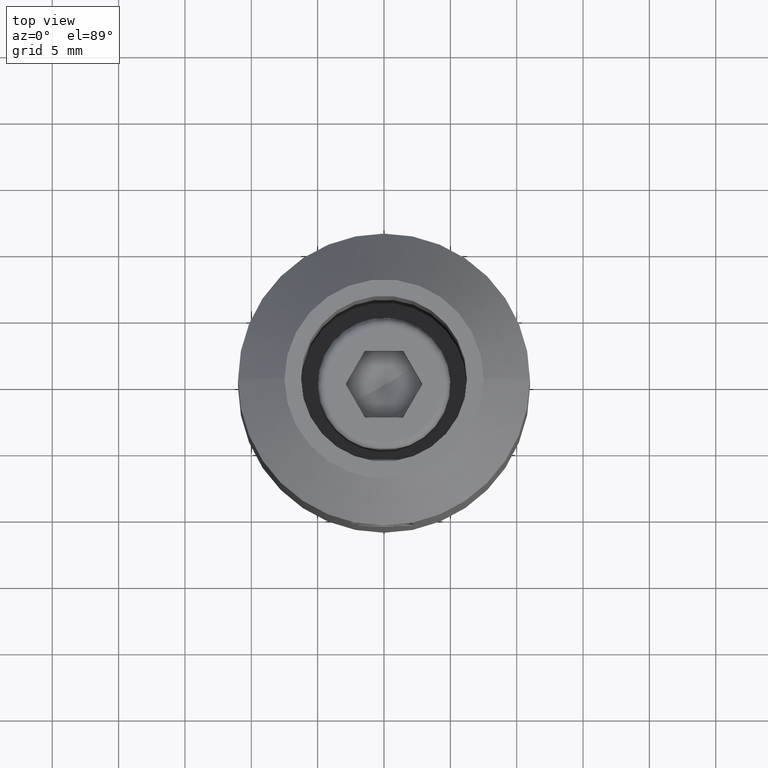
[diagram: clean part render]
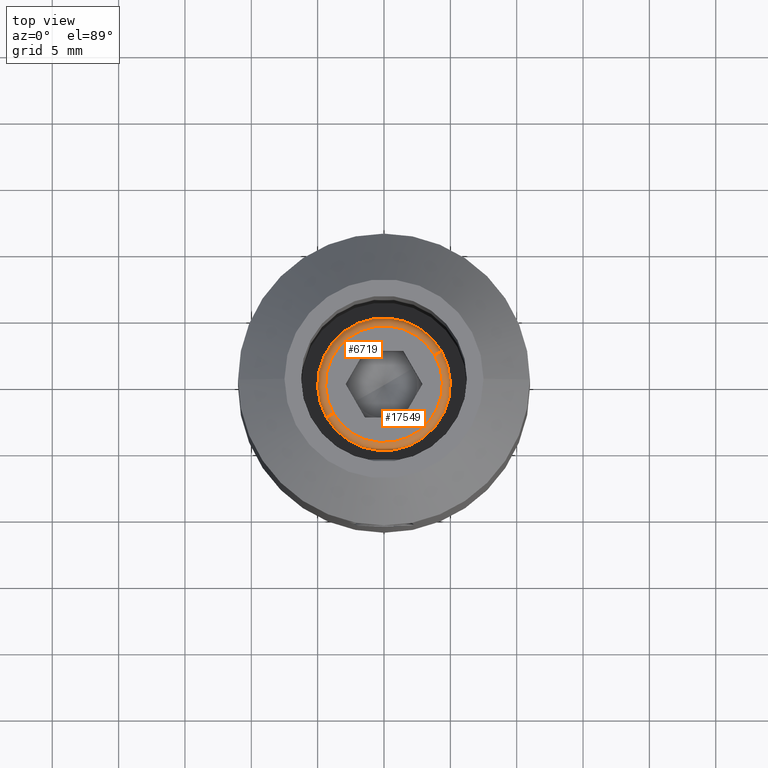
[diagram: same view with one multi-face feature highlighted, each face labeled with its STEP entity id]
A machine part, top view. The highlighted faces form ONE feature: a constant-radius fillet chain: 2 tangent blend faces with common blend radius 0.6 mm. The faces share edges in the B-rep.
Their STEP definitions:
[1] entity #6719 (Torus):
#1574 = CARTESIAN_POINT ( 'NONE',  ( 0.000000000000000000, 1.048987560550177941E-14, -4.400000000000000355 ) ) ;
#2166 = CIRCLE ( 'NONE', #18105, 0.5999999999999998668 ) ;
#2587 = EDGE_CURVE ( 'NONE', #10283, #12870, #2166, .T. ) ;
#2651 = CIRCLE ( 'NONE', #12194, 0.5999999999999998668 ) ;
#2813 = EDGE_CURVE ( 'NONE', #10283, #6060, #15401, .T. ) ;
#4115 = TOROIDAL_SURFACE ( 'NONE', #4142, 4.400000000000000355, 0.5999999999999999778 ) ;
#4142 = AXIS2_PLACEMENT_3D ( 'NONE', #17181, #7065, #15553 ) ;
#4283 = ORIENTED_EDGE ( 'NONE', *, *, #2587, .T. ) ;
#5334 = DIRECTION ( 'NONE',  ( 0.000000000000000000, 2.109423746787771000E-15, -1.000000000000000000 ) ) ;
#5438 = DIRECTION ( 'NONE',  ( 0.000000000000000000, -2.109423746787771394E-15, 1.000000000000000000 ) ) ;
#5553 = EDGE_CURVE ( 'NONE', #21563, #12870, #13405, .T. ) ;
#5715 = DIRECTION ( 'NONE',  ( 0.000000000000000000, -2.109423746787771394E-15, 1.000000000000000000 ) ) ;
#6060 = VERTEX_POINT ( 'NONE', #18079 ) ;
#6719 = ADVANCED_FACE ( 'NONE', ( #11007 ), #4115, .T. ) ;
#7056 = CARTESIAN_POINT ( 'NONE',  ( 0.000000000000000000, -9.281464485866309625E-15, 4.400000000000054534 ) ) ;
#7065 = DIRECTION ( 'NONE',  ( -1.000000000000000000, 0.000000000000000000, 0.000000000000000000 ) ) ;
#7185 = CARTESIAN_POINT ( 'NONE',  ( 0.6000000000000033085, -9.281464485866309625E-15, 4.400000000000054534 ) ) ;
#8871 = ORIENTED_EDGE ( 'NONE', *, *, #5553, .F. ) ;
#8921 = EDGE_LOOP ( 'NONE', ( #13861, #4283, #8871, #10543 ) ) ;
#9526 = AXIS2_PLACEMENT_3D ( 'NONE', #21011, #14526, #5715 ) ;
#10283 = VERTEX_POINT ( 'NONE', #13723 ) ;
#10543 = ORIENTED_EDGE ( 'NONE', *, *, #12931, .F. ) ;
#11007 = FACE_OUTER_BOUND ( 'NONE', #8921, .T. ) ;
#12194 = AXIS2_PLACEMENT_3D ( 'NONE', #7185, #12215, #5334 ) ;
#12215 = DIRECTION ( 'NONE',  ( -0.000000000000000000, -1.000000000000000000, -2.109423746787771394E-15 ) ) ;
#12870 = VERTEX_POINT ( 'NONE', #1574 ) ;
#12931 = EDGE_CURVE ( 'NONE', #6060, #21563, #2651, .T. ) ;
#13405 = CIRCLE ( 'NONE', #9526, 4.400000000000054534 ) ;
#13723 = CARTESIAN_POINT ( 'NONE',  ( 0.6000000000000033085, 1.115944213351253350E-14, -5.000000000000000000 ) ) ;
#13861 = ORIENTED_EDGE ( 'NONE', *, *, #2813, .F. ) ;
#13885 = CARTESIAN_POINT ( 'NONE',  ( 0.6000000000000033085, 0.000000000000000000, 0.000000000000000000 ) ) ;
#14282 = CARTESIAN_POINT ( 'NONE',  ( 0.6000000000000033085, 9.820309077491149956E-15, -4.400000000000054534 ) ) ;
#14526 = DIRECTION ( 'NONE',  ( -1.000000000000000000, 0.000000000000000000, 0.000000000000000000 ) ) ;
#15358 = DIRECTION ( 'NONE',  ( 1.000000000000000000, -0.000000000000000000, -0.000000000000000000 ) ) ;
#15401 = CIRCLE ( 'NONE', #16263, 5.000000000000062172 ) ;
#15553 = DIRECTION ( 'NONE',  ( 0.000000000000000000, -2.109423746787771000E-15, 1.000000000000000000 ) ) ;
#16263 = AXIS2_PLACEMENT_3D ( 'NONE', #13885, #15358, #5438 ) ;
#17181 = CARTESIAN_POINT ( 'NONE',  ( 0.6000000000000033085, 0.000000000000000000, 0.000000000000000000 ) ) ;
#17650 = DIRECTION ( 'NONE',  ( 0.000000000000000000, 1.000000000000000000, 2.231888426702506543E-15 ) ) ;
#18079 = CARTESIAN_POINT ( 'NONE',  ( 0.6000000000000033085, -1.054711873393898713E-14, 5.000000000000062172 ) ) ;
#18105 = AXIS2_PLACEMENT_3D ( 'NONE', #14282, #17650, #21647 ) ;
#21011 = CARTESIAN_POINT ( 'NONE',  ( 0.000000000000000000, 0.000000000000000000, 0.000000000000000000 ) ) ;
#21563 = VERTEX_POINT ( 'NONE', #7056 ) ;
#21647 = DIRECTION ( 'NONE',  ( 0.000000000000000000, -2.231888426702507726E-15, 1.000000000000000000 ) ) ;
[2] entity #17549 (Torus):
#1574 = CARTESIAN_POINT ( 'NONE',  ( 0.000000000000000000, 1.048987560550177941E-14, -4.400000000000000355 ) ) ;
#2166 = CIRCLE ( 'NONE', #18105, 0.5999999999999998668 ) ;
#2452 = CARTESIAN_POINT ( 'NONE',  ( 0.6000000000000033085, 0.000000000000000000, 0.000000000000000000 ) ) ;
#2587 = EDGE_CURVE ( 'NONE', #10283, #12870, #2166, .T. ) ;
#2651 = CIRCLE ( 'NONE', #12194, 0.5999999999999998668 ) ;
#2908 = TOROIDAL_SURFACE ( 'NONE', #4038, 4.400000000000000355, 0.5999999999999999778 ) ;
#3280 = FACE_OUTER_BOUND ( 'NONE', #3764, .T. ) ;
#3764 = EDGE_LOOP ( 'NONE', ( #18796, #16117, #11810, #11567 ) ) ;
#4038 = AXIS2_PLACEMENT_3D ( 'NONE', #2452, #19209, #9128 ) ;
#4575 = CARTESIAN_POINT ( 'NONE',  ( 0.6000000000000033085, 0.000000000000000000, 0.000000000000000000 ) ) ;
#5334 = DIRECTION ( 'NONE',  ( 0.000000000000000000, 2.109423746787771000E-15, -1.000000000000000000 ) ) ;
#6060 = VERTEX_POINT ( 'NONE', #18079 ) ;
#6485 = DIRECTION ( 'NONE',  ( 1.000000000000000000, -0.000000000000000000, -0.000000000000000000 ) ) ;
#7056 = CARTESIAN_POINT ( 'NONE',  ( 0.000000000000000000, -9.281464485866309625E-15, 4.400000000000054534 ) ) ;
#7185 = CARTESIAN_POINT ( 'NONE',  ( 0.6000000000000033085, -9.281464485866309625E-15, 4.400000000000054534 ) ) ;
#7938 = CARTESIAN_POINT ( 'NONE',  ( 0.000000000000000000, 0.000000000000000000, 0.000000000000000000 ) ) ;
#8095 = AXIS2_PLACEMENT_3D ( 'NONE', #4575, #6485, #18212 ) ;
#9128 = DIRECTION ( 'NONE',  ( 0.000000000000000000, -2.109423746787771000E-15, 1.000000000000000000 ) ) ;
#10283 = VERTEX_POINT ( 'NONE', #13723 ) ;
#11422 = DIRECTION ( 'NONE',  ( -1.000000000000000000, 0.000000000000000000, 0.000000000000000000 ) ) ;
#11567 = ORIENTED_EDGE ( 'NONE', *, *, #21769, .F. ) ;
#11639 = DIRECTION ( 'NONE',  ( 0.000000000000000000, -2.109423746787771394E-15, 1.000000000000000000 ) ) ;
#11810 = ORIENTED_EDGE ( 'NONE', *, *, #12931, .T. ) ;
#12194 = AXIS2_PLACEMENT_3D ( 'NONE', #7185, #12215, #5334 ) ;
#12215 = DIRECTION ( 'NONE',  ( -0.000000000000000000, -1.000000000000000000, -2.109423746787771394E-15 ) ) ;
#12257 = EDGE_CURVE ( 'NONE', #6060, #10283, #12976, .T. ) ;
#12870 = VERTEX_POINT ( 'NONE', #1574 ) ;
#12931 = EDGE_CURVE ( 'NONE', #6060, #21563, #2651, .T. ) ;
#12976 = CIRCLE ( 'NONE', #8095, 5.000000000000062172 ) ;
#13723 = CARTESIAN_POINT ( 'NONE',  ( 0.6000000000000033085, 1.115944213351253350E-14, -5.000000000000000000 ) ) ;
#14282 = CARTESIAN_POINT ( 'NONE',  ( 0.6000000000000033085, 9.820309077491149956E-15, -4.400000000000054534 ) ) ;
#16117 = ORIENTED_EDGE ( 'NONE', *, *, #12257, .F. ) ;
#16942 = AXIS2_PLACEMENT_3D ( 'NONE', #7938, #11422, #11639 ) ;
#17549 = ADVANCED_FACE ( 'NONE', ( #3280 ), #2908, .T. ) ;
#17650 = DIRECTION ( 'NONE',  ( 0.000000000000000000, 1.000000000000000000, 2.231888426702506543E-15 ) ) ;
#18079 = CARTESIAN_POINT ( 'NONE',  ( 0.6000000000000033085, -1.054711873393898713E-14, 5.000000000000062172 ) ) ;
#18105 = AXIS2_PLACEMENT_3D ( 'NONE', #14282, #17650, #21647 ) ;
#18212 = DIRECTION ( 'NONE',  ( 0.000000000000000000, -2.109423746787771394E-15, 1.000000000000000000 ) ) ;
#18796 = ORIENTED_EDGE ( 'NONE', *, *, #2587, .F. ) ;
#19209 = DIRECTION ( 'NONE',  ( -1.000000000000000000, 0.000000000000000000, 0.000000000000000000 ) ) ;
#20257 = CIRCLE ( 'NONE', #16942, 4.400000000000054534 ) ;
#21563 = VERTEX_POINT ( 'NONE', #7056 ) ;
#21647 = DIRECTION ( 'NONE',  ( 0.000000000000000000, -2.231888426702507726E-15, 1.000000000000000000 ) ) ;
#21769 = EDGE_CURVE ( 'NONE', #12870, #21563, #20257, .T. ) ;